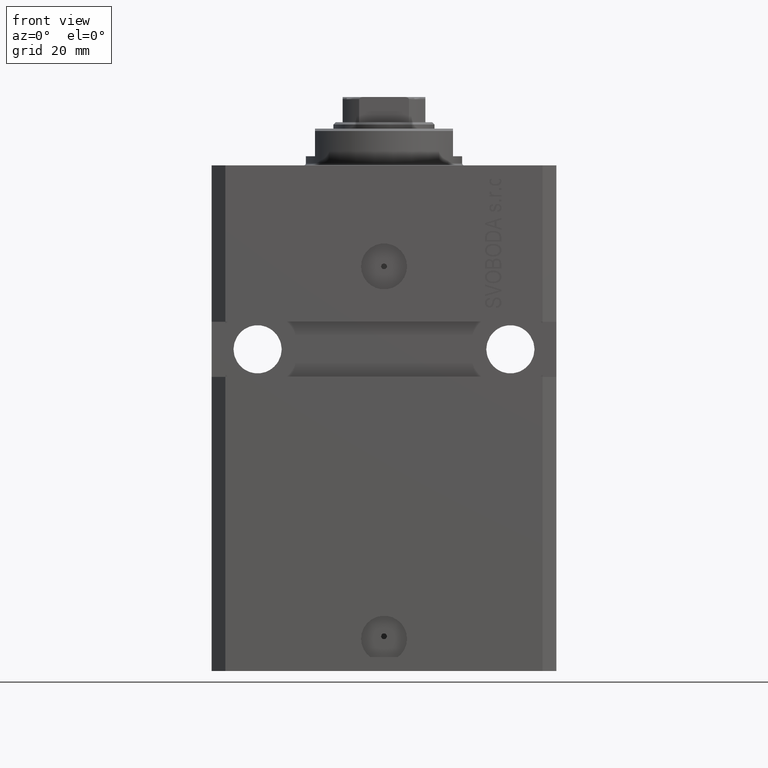
[diagram: clean part render]
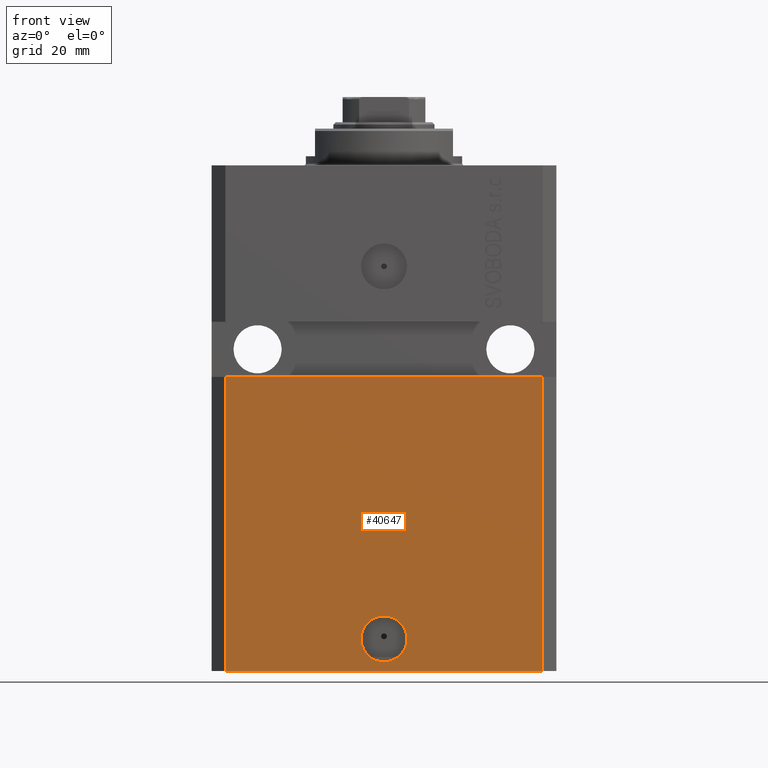
[diagram: same view with one face highlighted and labeled with its STEP entity id]
A machine part, front view. The second image highlights one B-rep face of the part: STEP entity #40647.
In plain terms, the highlighted planar face has unit normal (0, -1, 0).
Its self-contained STEP definition (entity closure, byte-faithful):
#711 = CARTESIAN_POINT ( 'NONE',  ( -34.49999999999998579, -27.49999999999999645, -110.0000000000000000 ) ) ;
#1989 = EDGE_CURVE ( 'NONE', #35680, #31561, #14542, .T. ) ;
#3033 = DIRECTION ( 'NONE',  ( 1.000000000000000000, 0.000000000000000000, 0.000000000000000000 ) ) ;
#3125 = EDGE_CURVE ( 'NONE', #6221, #39250, #44831, .T. ) ;
#3799 = CARTESIAN_POINT ( 'NONE',  ( 0.000000000000000000, -27.49999999999999645, -103.0000000000000000 ) ) ;
#6221 = VERTEX_POINT ( 'NONE', #23259 ) ;
#8255 = CIRCLE ( 'NONE', #27187, 5.000000000000006217 ) ;
#8276 = DIRECTION ( 'NONE',  ( 0.000000000000000000, -1.000000000000000000, 0.000000000000000000 ) ) ;
#8811 = VECTOR ( 'NONE', #16821, 1000.000000000000000 ) ;
#10179 = VECTOR ( 'NONE', #33966, 1000.000000000000000 ) ;
#10247 = DIRECTION ( 'NONE',  ( 1.000000000000000000, 0.000000000000000000, 0.000000000000000000 ) ) ;
#11139 = PLANE ( 'NONE',  #29413 ) ;
#12344 = EDGE_CURVE ( 'NONE', #35680, #6221, #27758, .T. ) ;
#12503 = CARTESIAN_POINT ( 'NONE',  ( 0.000000000000000000, -27.49999999999999645, -103.0000000000000000 ) ) ;
#12731 = AXIS2_PLACEMENT_3D ( 'NONE', #3799, #32937, #10247 ) ;
#13019 = CARTESIAN_POINT ( 'NONE',  ( -34.49999999999998579, -27.49999999999999645, -110.0000000000000000 ) ) ;
#14542 = LINE ( 'NONE', #43451, #16918 ) ;
#16065 = EDGE_CURVE ( 'NONE', #17396, #37790, #39232, .T. ) ;
#16821 = DIRECTION ( 'NONE',  ( 1.000000000000000000, 0.000000000000000000, 0.000000000000000000 ) ) ;
#16918 = VECTOR ( 'NONE', #33263, 1000.000000000000000 ) ;
#17296 = EDGE_CURVE ( 'NONE', #37790, #17396, #8255, .T. ) ;
#17396 = VERTEX_POINT ( 'NONE', #36419 ) ;
#20829 = CARTESIAN_POINT ( 'NONE',  ( -5.000000000000006217, -27.49999999999999645, -103.0000000000000000 ) ) ;
#22463 = CARTESIAN_POINT ( 'NONE',  ( -34.49999999999998579, -27.49999999999999645, -110.0000000000000000 ) ) ;
#23259 = CARTESIAN_POINT ( 'NONE',  ( 34.49999999999999289, -27.49999999999999645, -110.0000000000000000 ) ) ;
#24149 = VECTOR ( 'NONE', #33136, 1000.000000000000000 ) ;
#24618 = ORIENTED_EDGE ( 'NONE', *, *, #42185, .F. ) ;
#25512 = ORIENTED_EDGE ( 'NONE', *, *, #1989, .F. ) ;
#25595 = LINE ( 'NONE', #40477, #24149 ) ;
#27187 = AXIS2_PLACEMENT_3D ( 'NONE', #12503, #30983, #3033 ) ;
#27758 = LINE ( 'NONE', #13019, #8811 ) ;
#27813 = CARTESIAN_POINT ( 'NONE',  ( 34.49999999999999289, -27.49999999999999289, -46.00000000000000711 ) ) ;
#29413 = AXIS2_PLACEMENT_3D ( 'NONE', #711, #8276, #33165 ) ;
#29626 = FACE_BOUND ( 'NONE', #30377, .T. ) ;
#30377 = EDGE_LOOP ( 'NONE', ( #35895, #32431 ) ) ;
#30983 = DIRECTION ( 'NONE',  ( 1.176083712526788232E-16, -1.000000000000000000, 0.000000000000000000 ) ) ;
#31151 = ORIENTED_EDGE ( 'NONE', *, *, #12344, .T. ) ;
#31561 = VERTEX_POINT ( 'NONE', #44388 ) ;
#32431 = ORIENTED_EDGE ( 'NONE', *, *, #17296, .F. ) ;
#32937 = DIRECTION ( 'NONE',  ( 1.176083712526788232E-16, -1.000000000000000000, 0.000000000000000000 ) ) ;
#33136 = DIRECTION ( 'NONE',  ( 1.000000000000000000, 9.251858538542972814E-17, -9.251858538542972814E-17 ) ) ;
#33165 = DIRECTION ( 'NONE',  ( 0.000000000000000000, -0.000000000000000000, -1.000000000000000000 ) ) ;
#33263 = DIRECTION ( 'NONE',  ( 0.000000000000000000, 0.000000000000000000, 1.000000000000000000 ) ) ;
#33578 = ORIENTED_EDGE ( 'NONE', *, *, #3125, .T. ) ;
#33856 = EDGE_LOOP ( 'NONE', ( #24618, #25512, #31151, #33578 ) ) ;
#33966 = DIRECTION ( 'NONE',  ( 0.000000000000000000, 0.000000000000000000, 1.000000000000000000 ) ) ;
#35680 = VERTEX_POINT ( 'NONE', #22463 ) ;
#35895 = ORIENTED_EDGE ( 'NONE', *, *, #16065, .F. ) ;
#36419 = CARTESIAN_POINT ( 'NONE',  ( 5.000000000000006217, -27.49999999999999645, -103.0000000000000000 ) ) ;
#36942 = FACE_OUTER_BOUND ( 'NONE', #33856, .T. ) ;
#37508 = CARTESIAN_POINT ( 'NONE',  ( 34.49999999999999289, -27.49999999999999645, -110.0000000000000000 ) ) ;
#37790 = VERTEX_POINT ( 'NONE', #20829 ) ;
#39232 = CIRCLE ( 'NONE', #12731, 5.000000000000006217 ) ;
#39250 = VERTEX_POINT ( 'NONE', #27813 ) ;
#40477 = CARTESIAN_POINT ( 'NONE',  ( -37.50000000000000000, -27.50000000000000000, -46.00000000000000000 ) ) ;
#40647 = ADVANCED_FACE ( 'NONE', ( #29626, #36942 ), #11139, .T. ) ;
#42185 = EDGE_CURVE ( 'NONE', #31561, #39250, #25595, .T. ) ;
#43451 = CARTESIAN_POINT ( 'NONE',  ( -34.49999999999998579, -27.49999999999999645, -110.0000000000000000 ) ) ;
#44388 = CARTESIAN_POINT ( 'NONE',  ( -34.49999999999998579, -27.50000000000000000, -46.00000000000000000 ) ) ;
#44831 = LINE ( 'NONE', #37508, #10179 ) ;